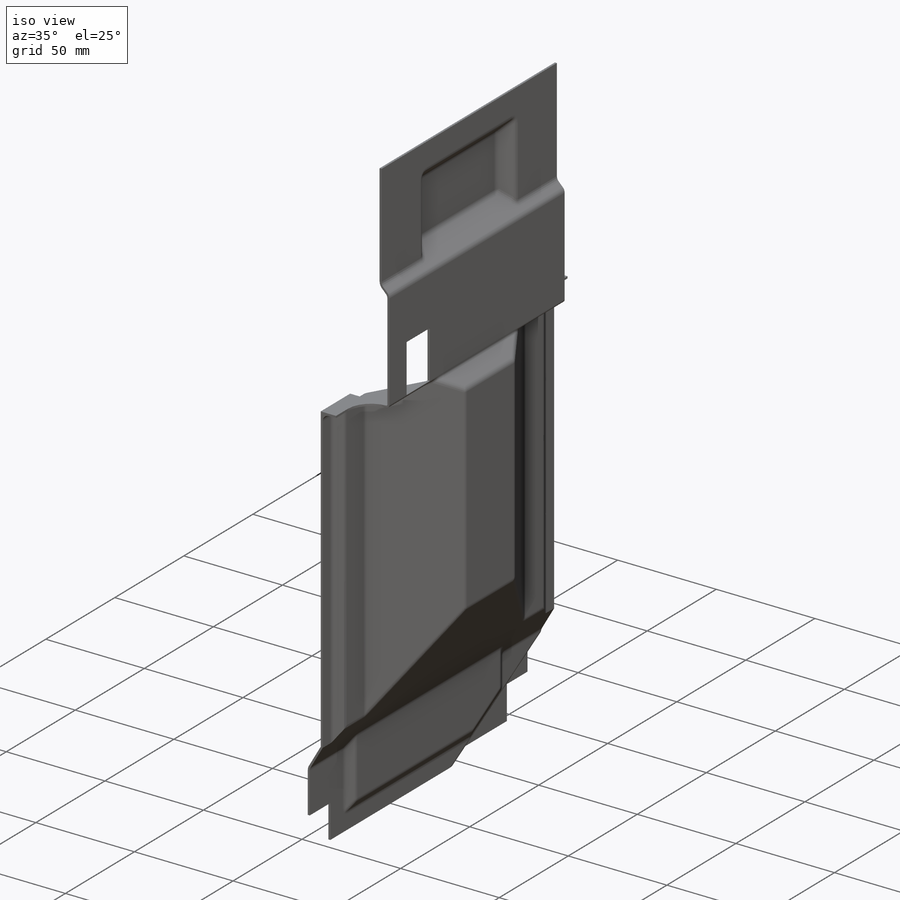
[diagram: iso view]
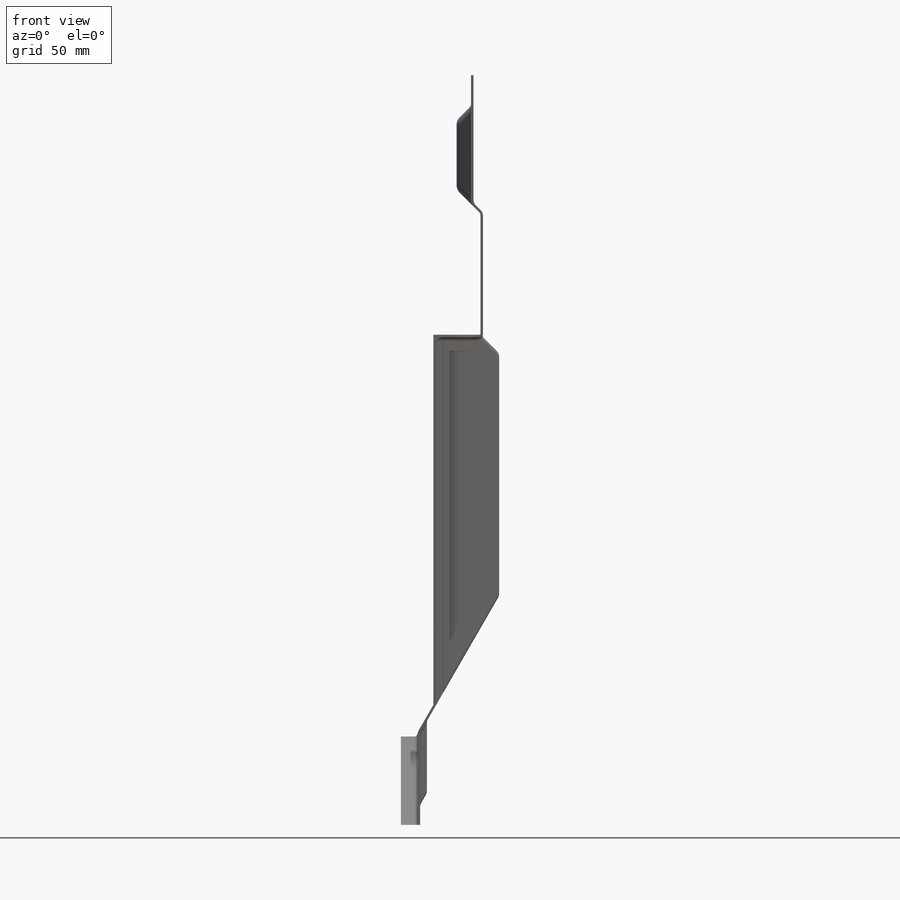
[diagram: front view]
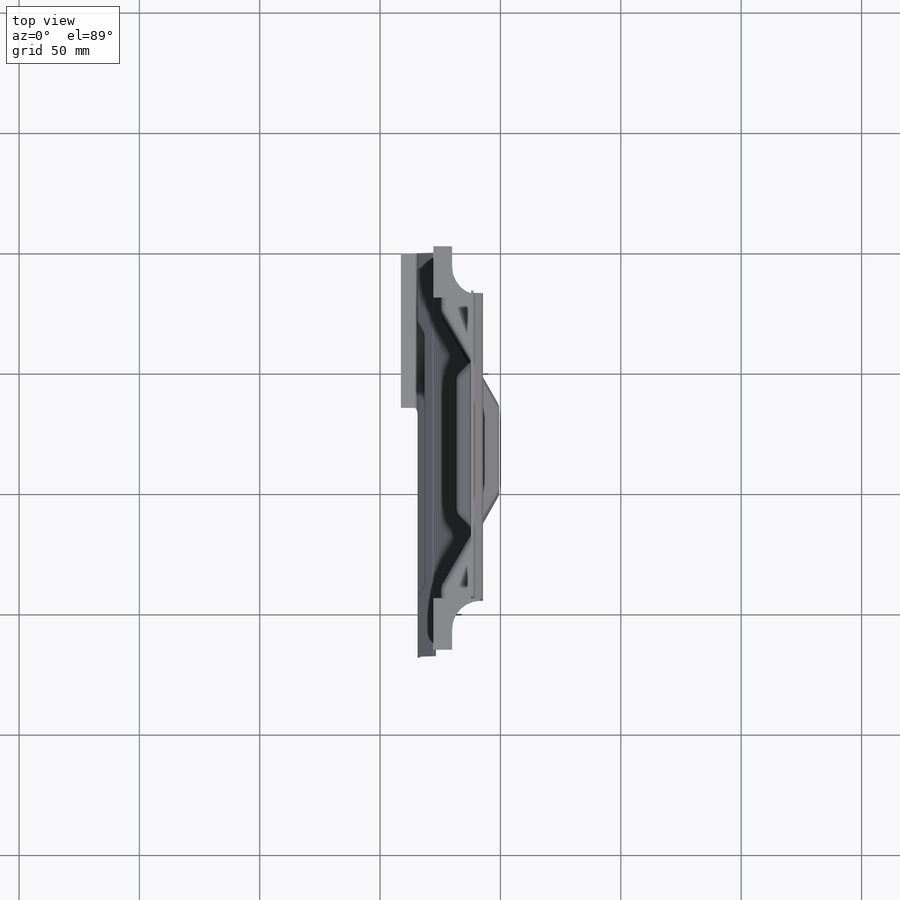
[diagram: top view]
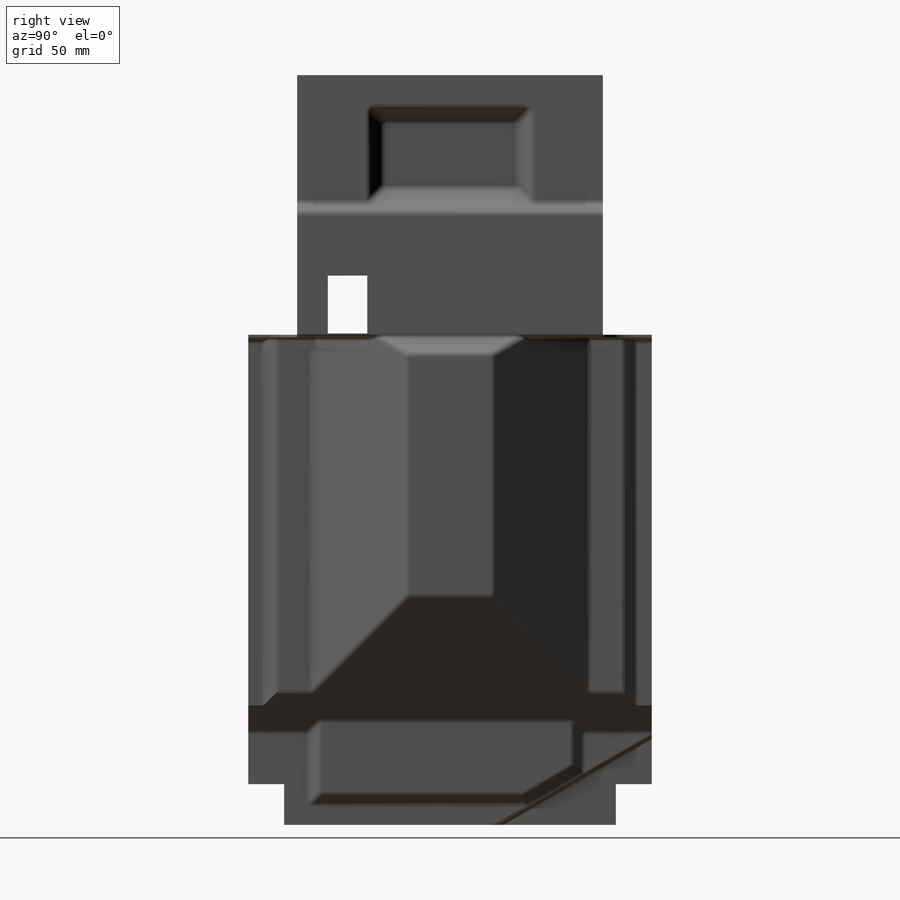
[diagram: right view]
SOLIDWORKS PART (.sldprt)
format: sldprt  version: not decoded by parser v0  size: 6,813,184 bytes
history: native  units: mm
features: sketch x21, extrude x15, fillet x12, cut_extrude x6, chamfer x5, plane x4, material x1, shell x1 + 1 further entry (+24 scaffold rows collapsed; 3 parser-record rows omitted)
feature tree (93):
  scaffold x24  (default folders/planes/origin — collapsed)
  material  "Material <not specified>"
  plane  "Front Plane-FrontBody"
  plane  "Top Plane-FrontBody"
  plane  "Right Plane-FrontBody"
  plane  "Plane1-FrontBody"
  "FrontBody"
  parser-record x3  (decoder bookkeeping rows leaked as tree rows — omitted from the tree; the rows remain in map.json)
  sketch  "Sketch20"  dims[D1=0.0mm]
  extrude  "Extrude17"  Depth=1.016mm
  sketch  "Sketch21"  dims[D1=0.0mm]
  extrude  "Extrude18"  Depth=1.016mm
  sketch  "Sketch22"  dims[D1=0.0mm]
  extrude  "Extrude19"  Depth=1.016mm
  sketch  "Sketch24"  dims[D1=1.016mm D2=~2.38125mm]
  extrude  "Extrude20"  [1 undecoded]
  sketch  "Sketch50"  dims[D1=0.0mm]
  extrude  "Extrude42"  [1 undecoded]
  sketch  "Sketch9"  dims[D1=0.0mm D2=1.016mm]
  extrude  "Extrude9"  Depth=1.016mm
  sketch  "Sketch7"  dims[D1=0.0mm D2=24.765mm]
  extrude  "Extrude6"  Depth=1.016mm
  sketch  "Sketch26"
  extrude  "Extrude22"  [1 undecoded]
  sketch  "Sketch15"  dims[D1=33.9725mm D2=33.9725mm D3=23.1394mm]
  cut_extrude  "Extrude23"  Depth=5.9944mm
  chamfer  "Chamfer3"  Distance=5.9944mm Angle=45deg
  sketch  "Sketch28"  dims[c1.D1=0.0mm c1.D2=6.35mm c1.D3=6.35mm c2.D1=6.35mm c2.D2=6.35mm]
  extrude  "Extrude24"  Depth=3.175mm
  chamfer  "Chamfer8"  Distance=3.175mm Angle=60deg
  sketch  "Sketch29"  dims[c1.D1=~17.76095mm c1.D2=~17.76095mm c2.D1=~17.76095mm c2.D2=~17.76095mm]
  extrude  "Extrude25"  Depth=6.731mm
  chamfer  "Chamfer9"  Distance=23.114mm Angle=60deg
  sketch  "Sketch30"  dims[c1.D1=20.193mm c2.D1=60.0deg c2.D2=~15.61762mm c3.D2=30.0deg c4.D2=~10.491781mm c5.D2=30.0deg c5.D1=~38.314497mm c6.D1=30.0deg]
  cut_extrude  "Extrude26"  [1 undecoded]
  chamfer  "Chamfer11"  Distance=6.731mm Angle=45deg
  sketch  "Sketch59"  dims[D1=0.0mm]
  extrude  "Extrude50"  [1 undecoded]
  sketch  "Sketch53"  dims[D1=0.0mm]
  extrude  "Extrude45"  [1 undecoded]
  sketch  "Sketch54"  dims[D1=0.0mm]
  extrude  "Extrude46"  [1 undecoded]
  fillet  "Fillet18"  Radius=2.38125mm
  sketch  "Sketch31"  dims[D1=57.15mm D2=57.15mm D3=8.3566mm]
  extrude  "Extrude27"  Depth=2.794mm
  chamfer  "Chamfer10"  Distance=2.794mm Angle=60deg
  sketch  "Sketch51"  dims[D1=0.0mm]
  extrude  "Extrude43"  [1 undecoded]
  fillet  "Fillet3"  Radius=3.175mm
  fillet  "Fillet4"  Radius=3.175mm
  fillet  "Fillet9"  Radius=3.175mm
  fillet  "Fillet12"  Radius=3.175mm
  fillet  "Fillet19"  Radius=3.175mm
  fillet  "Fillet20"  Radius=3.175mm
  fillet  "Fillet22"  Radius=1.5875mm
  fillet  "Fillet23"  Radius=1.5875mm
  fillet  "Fillet24"  Radius=1.5875mm
  shell  "Shell22"  Thickness=1.016mm
  fillet  "Fillet10"  Radius=3.175mm
  sketch  "Sketch41"  dims[D1=16.4084mm D2=24.0538mm D3=12.7mm]
  cut_extrude  "Extrude35"  [1 undecoded]
  sketch  "Sketch55"  dims[D1=0.0mm]
  cut_extrude  "Extrude47"  [1 undecoded]
  sketch  "Sketch56"  dims[D1=0.0mm]
  cut_extrude  "Extrude48"  [1 undecoded]
  sketch  "Sketch58"  dims[D1=0.0mm]
  cut_extrude  "Extrude49"  [1 undecoded]
  fillet  "Fillet21"  Radius=0.198437mm
decode coverage: 47 of 60 modeling features carry decoded parameters; 1 rows unclassified (native names shown)
note: ~ marks probable driven/reference dimensions
note: 12 parameter values undecoded
summary: no parameter record found for 12 features
note: suppression state not decoded; provenance and decode notes live in map.json
